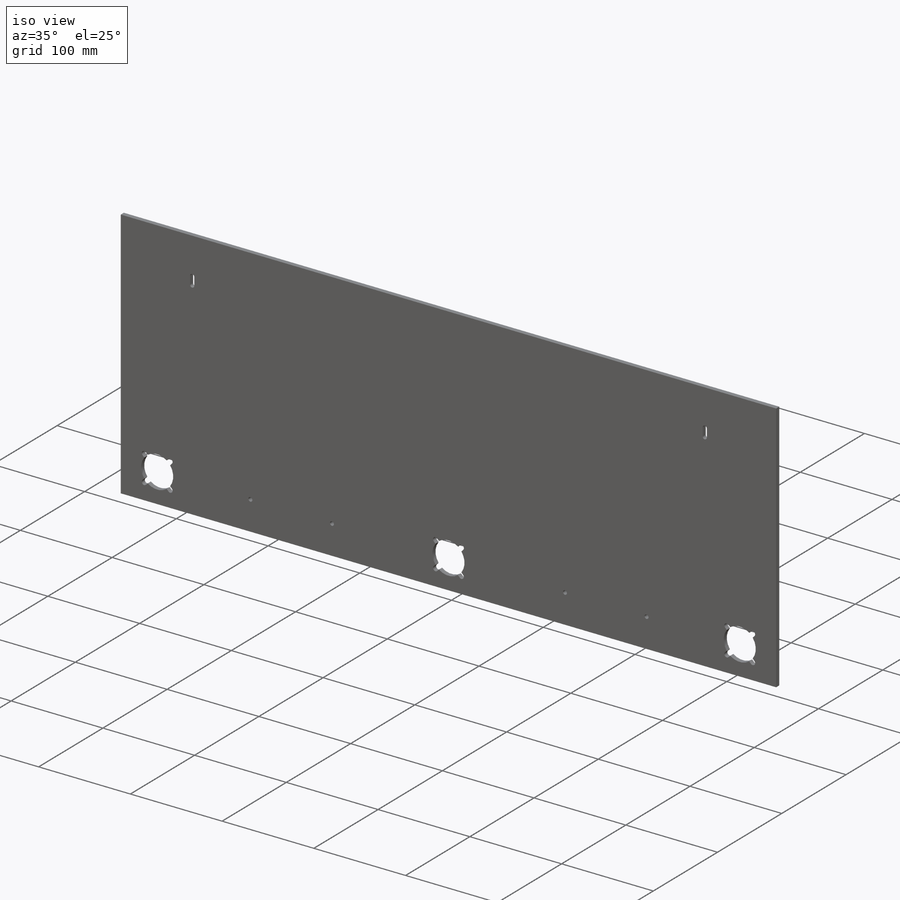
[diagram: iso view]
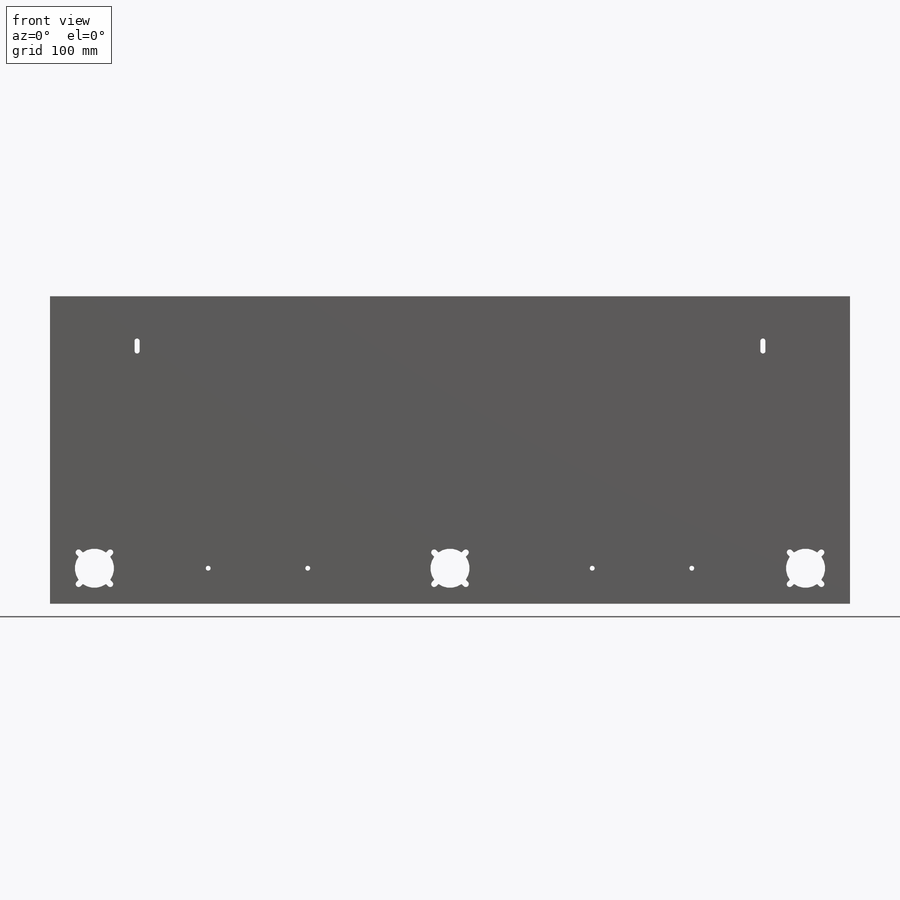
[diagram: front view]
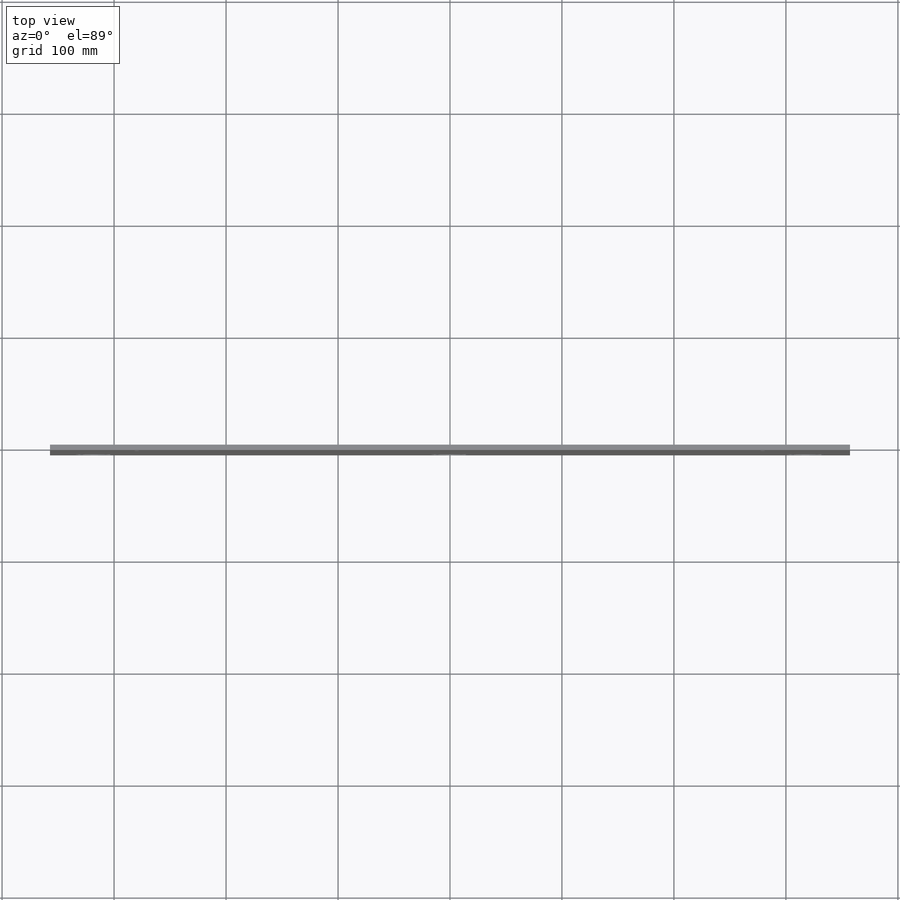
[diagram: top view]
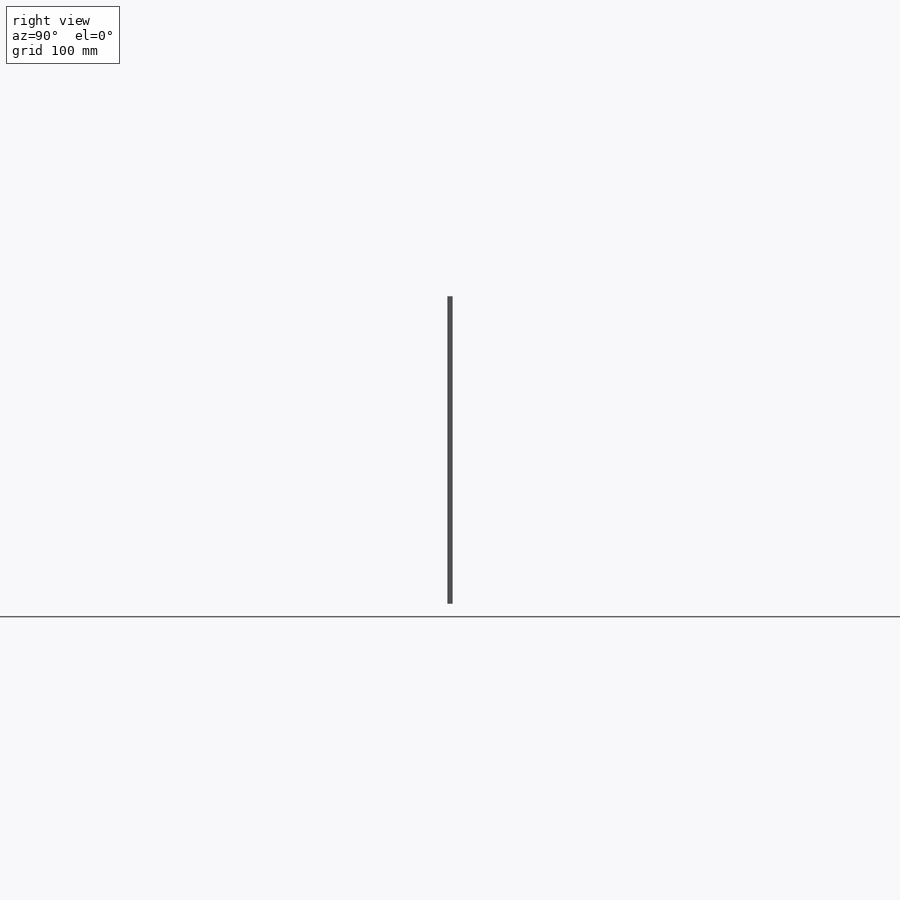
[diagram: right view]
SOLIDWORKS PART (.sldprt)
format: sldprt  version: not decoded by parser v0  size: 273,408 bytes
history: native  units: mm
features: sketch x4, cut_extrude x3, material x1, extrude x1 (+12 scaffold rows collapsed)
feature tree (21):
  scaffold x12  (default folders/planes/origin — collapsed)
  material  "Material <not specified>"
  sketch  "Sketch1"  dims[D1=714.375mm D2=274.6375mm]
  extrude  "Boss-Extrude1"  Depth=4.7625mm
  sketch  "Sketch2"  dims[c1.D2=34.925mm c1.D3=5.25mm c1.D1=63.5mm c2.D3=279.4mm c2.D4=20.0mm c2.D5=~14.142136mm c3.D5=45.0deg c3.D7=317.5mm c3.D8=317.5mm c3.D6=4.0]
  cut_extrude  "Cut-Extrude1"  [1 undecoded]
  sketch  "Sketch4"  dims[c1.D1=6.35mm c1.D2=63.5mm c1.D3=8.89mm c1.D4=4.4958mm c1.D5=~178.59375mm c1.D6=357.1875mm c2.D5=279.4mm c2.D6=279.4mm c2.D7=25.4mm]
  cut_extrude  "Cut-Extrude3"  [1 undecoded]
  sketch  "Sketch5"  dims[D2=4.3053mm D1=63.5mm D3=127.0mm D4=215.9mm]
  cut_extrude  "Cut-Extrude4"  [1 undecoded]
decode coverage: 5 of 8 modeling features carry decoded parameters
note: ~ marks probable driven/reference dimensions
note: 3 parameter values undecoded
summary: no parameter record found for 3 features
note: suppression state not decoded; provenance and decode notes live in map.json
